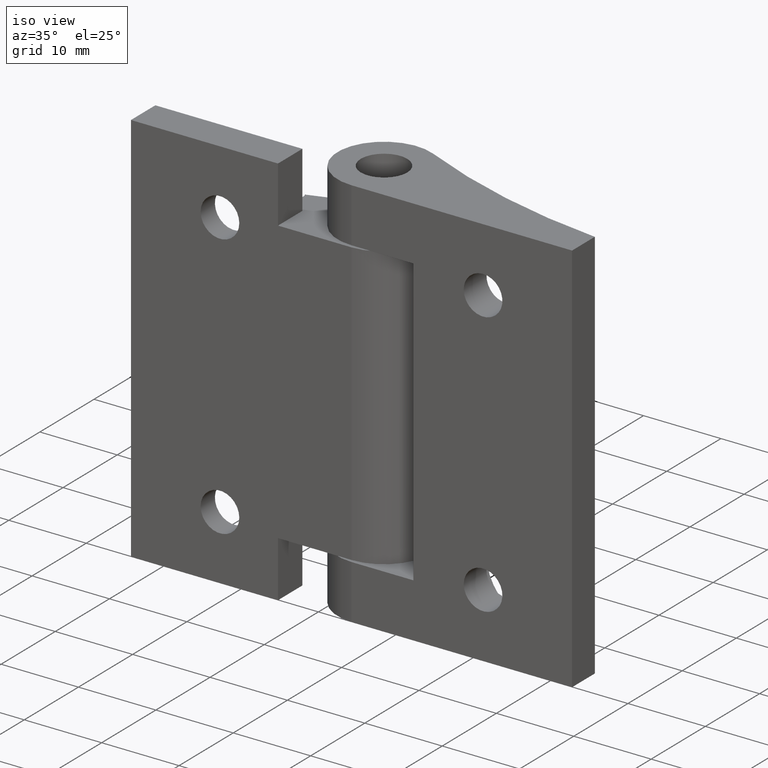
[diagram: clean part render]
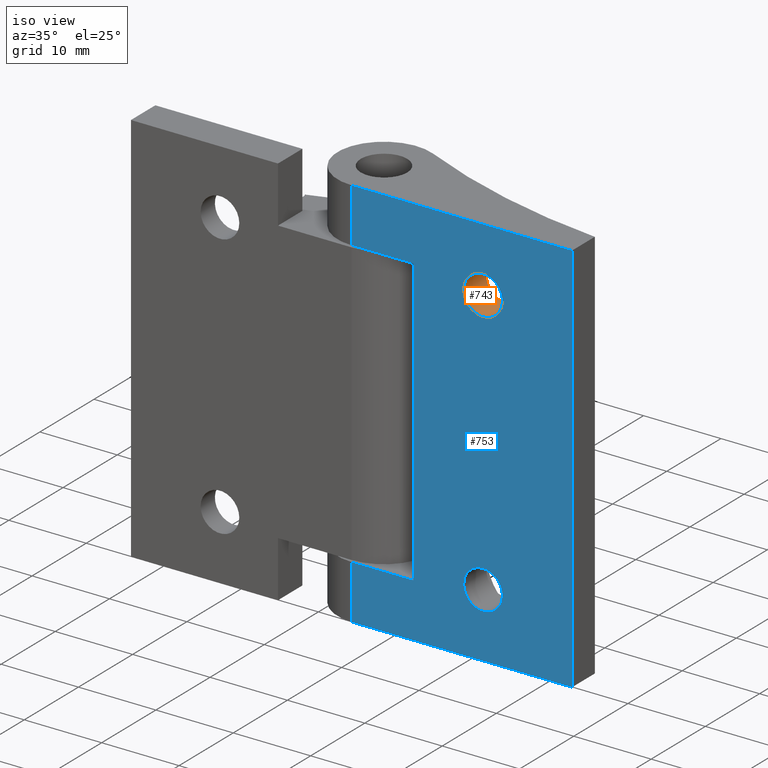
[diagram: same view with the hole feature highlighted: cylindrical wall and planar end face, labeled with their STEP entity ids]
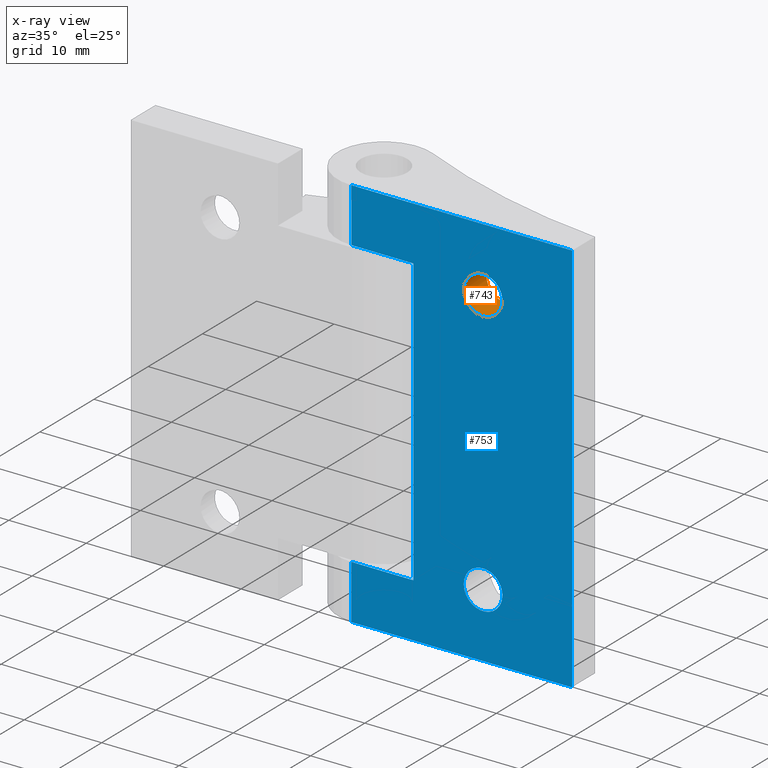
[diagram: x-ray of the same camera — body ghosted, the hole faces saturated]
A machine part, iso view. The highlighted faces form one hole feature of diameter 5 mm: the cylindrical wall (entity #743, orange) and its adjacent planar end face (entity #753, blue) — they share a circular edge in the B-rep.
The next image is the same camera in x-ray (body ghosted, the hole faces saturated) — the bore reads through the body.
Wall:
#33=FACE_BOUND('',#129,.T.);
#81=FACE_OUTER_BOUND('',#128,.T.);
#128=EDGE_LOOP('',(#553));
#129=EDGE_LOOP('',(#554));
#191=CIRCLE('',#799,2.5);
#193=CIRCLE('',#802,2.5);
#363=VERTEX_POINT('',#1187);
#365=VERTEX_POINT('',#1192);
#439=EDGE_CURVE('',#363,#363,#191,.T.);
#441=EDGE_CURVE('',#365,#365,#193,.T.);
#553=ORIENTED_EDGE('',*,*,#441,.F.);
#554=ORIENTED_EDGE('',*,*,#439,.F.);
#721=CYLINDRICAL_SURFACE('',#801,2.5);
#743=ADVANCED_FACE('',(#81,#33),#721,.F.);
#799=AXIS2_PLACEMENT_3D('',#1188,#917,#918);
#801=AXIS2_PLACEMENT_3D('',#1191,#921,#922);
#802=AXIS2_PLACEMENT_3D('',#1193,#923,#924);
#917=DIRECTION('center_axis',(5.30976229168567E-16,-1.,0.));
#918=DIRECTION('ref_axis',(1.,5.30976229168567E-16,0.));
#921=DIRECTION('center_axis',(-5.30976229168567E-16,1.,0.));
#922=DIRECTION('ref_axis',(1.,5.30976229168567E-16,0.));
#923=DIRECTION('center_axis',(5.84327907697469E-17,1.,0.));
#924=DIRECTION('ref_axis',(1.,5.30976229168567E-16,0.));
#1187=CARTESIAN_POINT('',(0.614584349593281,2.09999999999999,18.5));
#1188=CARTESIAN_POINT('Origin',(2.74999999999954,2.09999999999999,17.2));
#1191=CARTESIAN_POINT('Origin',(2.74999999999958,-60.631570998979,17.2));
#1192=CARTESIAN_POINT('',(0.249999999999546,-2.09999999999999,17.2));
#1193=CARTESIAN_POINT('Origin',(2.74999999999955,-2.09999999999999,17.2));
End face:
#38=FACE_BOUND('',#144,.T.);
#39=FACE_BOUND('',#145,.T.);
#57=PLANE('',#819);
#91=FACE_OUTER_BOUND('',#143,.T.);
#143=EDGE_LOOP('',(#590,#591,#592,#593,#594,#595,#596,#597));
#144=EDGE_LOOP('',(#598));
#145=EDGE_LOOP('',(#599));
#193=CIRCLE('',#802,2.5);
#194=CIRCLE('',#804,2.5);
#230=LINE('',#1162,#290);
#231=LINE('',#1174,#291);
#241=LINE('',#1210,#301);
#242=LINE('',#1219,#302);
#243=LINE('',#1224,#303);
#245=LINE('',#1228,#305);
#246=LINE('',#1231,#306);
#247=LINE('',#1232,#307);
#290=VECTOR('',#890,8.);
#291=VECTOR('',#903,8.);
#301=VECTOR('',#943,37.);
#302=VECTOR('',#954,7.);
#303=VECTOR('',#961,7.);
#305=VECTOR('',#965,28.4999999999991);
#306=VECTOR('',#968,51.);
#307=VECTOR('',#969,28.4999999999991);
#353=VERTEX_POINT('',#1159);
#354=VERTEX_POINT('',#1161);
#358=VERTEX_POINT('',#1171);
#359=VERTEX_POINT('',#1173);
#365=VERTEX_POINT('',#1192);
#366=VERTEX_POINT('',#1195);
#373=VERTEX_POINT('',#1218);
#374=VERTEX_POINT('',#1222);
#375=VERTEX_POINT('',#1226);
#376=VERTEX_POINT('',#1230);
#425=EDGE_CURVE('',#354,#353,#230,.T.);
#431=EDGE_CURVE('',#359,#358,#231,.T.);
#441=EDGE_CURVE('',#365,#365,#193,.T.);
#442=EDGE_CURVE('',#366,#366,#194,.T.);
#449=EDGE_CURVE('',#353,#359,#241,.T.);
#452=EDGE_CURVE('',#354,#373,#242,.T.);
#455=EDGE_CURVE('',#374,#358,#243,.T.);
#457=EDGE_CURVE('',#375,#374,#245,.T.);
#458=EDGE_CURVE('',#376,#375,#246,.T.);
#459=EDGE_CURVE('',#373,#376,#247,.T.);
#590=ORIENTED_EDGE('',*,*,#431,.T.);
#591=ORIENTED_EDGE('',*,*,#455,.F.);
#592=ORIENTED_EDGE('',*,*,#457,.F.);
#593=ORIENTED_EDGE('',*,*,#458,.F.);
#594=ORIENTED_EDGE('',*,*,#459,.F.);
#595=ORIENTED_EDGE('',*,*,#452,.F.);
#596=ORIENTED_EDGE('',*,*,#425,.T.);
#597=ORIENTED_EDGE('',*,*,#449,.T.);
#598=ORIENTED_EDGE('',*,*,#441,.T.);
#599=ORIENTED_EDGE('',*,*,#442,.T.);
#753=ADVANCED_FACE('',(#91,#38,#39),#57,.T.);
#802=AXIS2_PLACEMENT_3D('',#1193,#923,#924);
#804=AXIS2_PLACEMENT_3D('',#1196,#927,#928);
#819=AXIS2_PLACEMENT_3D('',#1229,#966,#967);
#890=DIRECTION('',(1.,-5.84327907697469E-17,0.));
#903=DIRECTION('',(-1.,5.84327907697469E-17,0.));
#923=DIRECTION('center_axis',(5.84327907697469E-17,1.,0.));
#924=DIRECTION('ref_axis',(1.,5.30976229168567E-16,0.));
#927=DIRECTION('center_axis',(5.84327907697469E-17,1.,0.));
#928=DIRECTION('ref_axis',(1.,5.30976229168567E-16,0.));
#943=DIRECTION('',(0.,0.,-1.));
#954=DIRECTION('',(0.,0.,1.));
#961=DIRECTION('',(0.,0.,1.));
#965=DIRECTION('',(-1.,5.84327907697469E-17,0.));
#966=DIRECTION('center_axis',(-5.84327907697469E-17,-1.,0.));
#967=DIRECTION('ref_axis',(1.,-4.44089209850063E-17,0.));
#968=DIRECTION('',(0.,0.,-1.));
#969=DIRECTION('',(1.,-5.84327907697469E-17,0.));
#1159=CARTESIAN_POINT('',(-6.24999999999955,-2.1,18.5));
#1161=CARTESIAN_POINT('',(-14.2499999999995,-2.1,18.5));
#1162=CARTESIAN_POINT('',(-10.2499999999995,-2.1,18.5));
#1171=CARTESIAN_POINT('',(-14.2499999999995,-2.1,-18.5));
#1173=CARTESIAN_POINT('',(-6.24999999999955,-2.1,-18.5));
#1174=CARTESIAN_POINT('',(-17.2499999999995,-2.1,-18.5));
#1192=CARTESIAN_POINT('',(0.249999999999546,-2.09999999999999,17.2));
#1193=CARTESIAN_POINT('Origin',(2.74999999999955,-2.09999999999999,17.2));
#1195=CARTESIAN_POINT('',(0.249999999999545,-2.09999999999999,-17.2));
#1196=CARTESIAN_POINT('Origin',(2.74999999999955,-2.09999999999999,-17.2));
#1210=CARTESIAN_POINT('',(-6.24999999999955,-2.1,-9.25));
#1218=CARTESIAN_POINT('',(-14.2499999999995,-2.1,25.5));
#1219=CARTESIAN_POINT('',(-14.2499999999995,-2.1,0.));
#1222=CARTESIAN_POINT('',(-14.2499999999995,-2.1,-25.5));
#1224=CARTESIAN_POINT('',(-14.2499999999995,-2.1,0.));
#1226=CARTESIAN_POINT('',(14.2499999999995,-2.1,-25.5));
#1228=CARTESIAN_POINT('',(-14.2499999999995,-2.1,-25.5));
#1229=CARTESIAN_POINT('Origin',(-14.2499999999995,-2.1,0.));
#1230=CARTESIAN_POINT('',(14.2499999999995,-2.1,25.5));
#1231=CARTESIAN_POINT('',(14.2499999999995,-2.1,0.));
#1232=CARTESIAN_POINT('',(-14.2499999999995,-2.1,25.5));